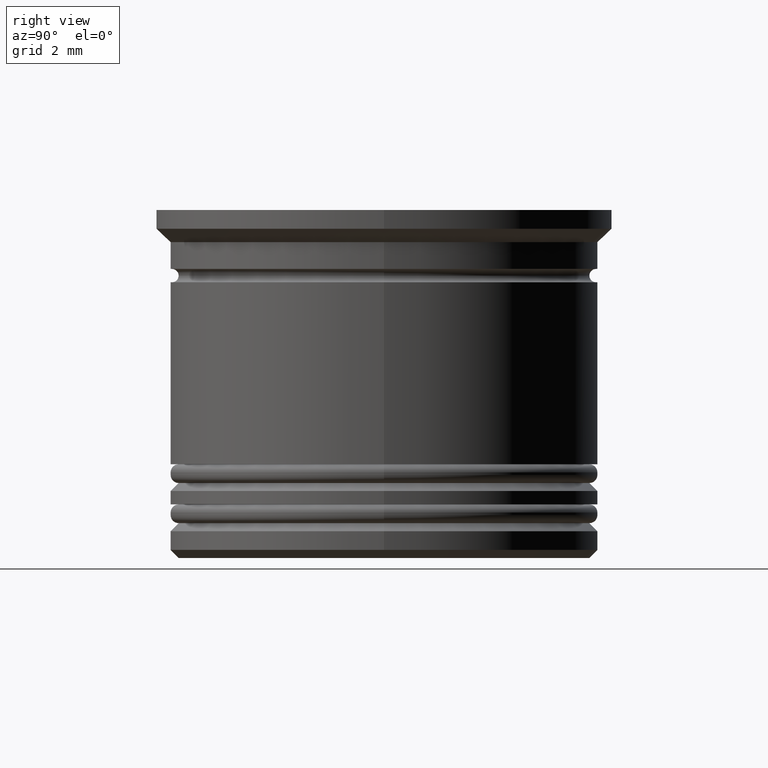
[diagram: clean part render]
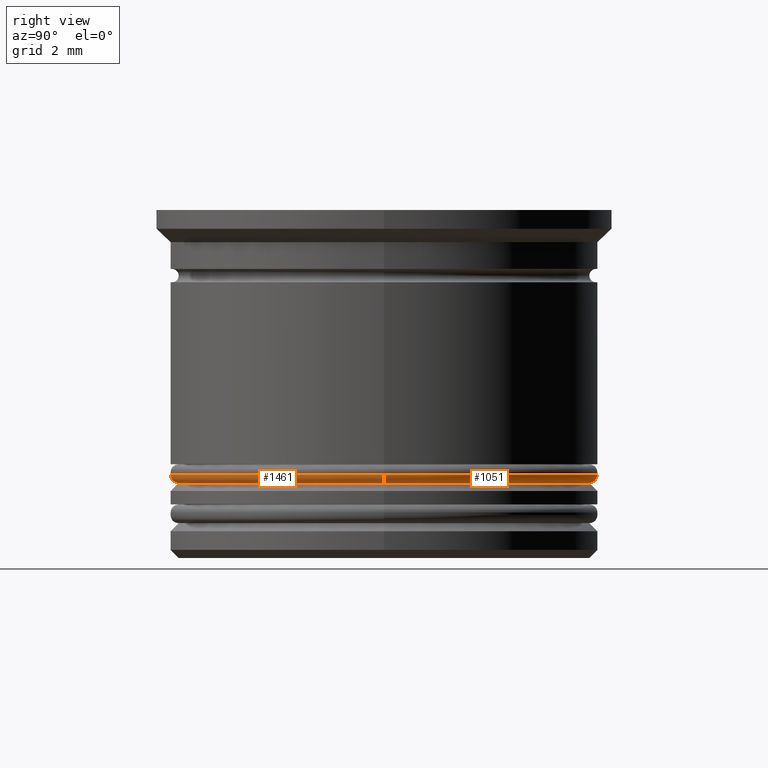
[diagram: same view with one multi-face feature highlighted, each face labeled with its STEP entity id]
A machine part, right view. The highlighted faces form ONE feature: a constant-radius fillet chain: 2 tangent blend faces with common blend radius 0.3 mm. The faces share edges in the B-rep.
Their STEP definitions:
[1] entity #1461 (Torus):
#8 = DIRECTION ( 'NONE',  ( 0.000000000000000000, 0.000000000000000000, 1.000000000000000000 ) ) ;
#33 = DIRECTION ( 'NONE',  ( 1.000000000000000000, 0.000000000000000000, 0.000000000000000000 ) ) ;
#110 = CARTESIAN_POINT ( 'NONE',  ( -8.000000000000001776, 9.797174393178827630E-16, -9.900000000000005684 ) ) ;
#116 = CIRCLE ( 'NONE', #1229, 7.700000000000001954 ) ;
#122 = CIRCLE ( 'NONE', #1019, 0.2999999999999999334 ) ;
#139 = CARTESIAN_POINT ( 'NONE',  ( 0.000000000000000000, 0.000000000000000000, -9.900000000000005684 ) ) ;
#210 = VERTEX_POINT ( 'NONE', #1585 ) ;
#278 = AXIS2_PLACEMENT_3D ( 'NONE', #518, #364, #1315 ) ;
#294 = DIRECTION ( 'NONE',  ( 0.000000000000000000, -1.000000000000000000, 0.000000000000000000 ) ) ;
#364 = DIRECTION ( 'NONE',  ( 1.224646799147353207E-16, 1.000000000000000000, -0.000000000000000000 ) ) ;
#429 = EDGE_CURVE ( 'NONE', #810, #1310, #1296, .T. ) ;
#518 = CARTESIAN_POINT ( 'NONE',  ( -7.700000000000001954, 9.429780353434622974E-16, -9.900000000000005684 ) ) ;
#534 = DIRECTION ( 'NONE',  ( 0.000000000000000000, 0.000000000000000000, 1.000000000000000000 ) ) ;
#633 = FACE_OUTER_BOUND ( 'NONE', #1155, .T. ) ;
#810 = VERTEX_POINT ( 'NONE', #1268 ) ;
#840 = ORIENTED_EDGE ( 'NONE', *, *, #1958, .T. ) ;
#925 = DIRECTION ( 'NONE',  ( 0.000000000000000000, 0.000000000000000000, -1.000000000000000000 ) ) ;
#1019 = AXIS2_PLACEMENT_3D ( 'NONE', #1670, #294, #925 ) ;
#1115 = EDGE_CURVE ( 'NONE', #1619, #810, #116, .T. ) ;
#1116 = DIRECTION ( 'NONE',  ( 1.000000000000000000, 0.000000000000000000, 0.000000000000000000 ) ) ;
#1155 = EDGE_LOOP ( 'NONE', ( #1594, #1762, #840, #1835 ) ) ;
#1187 = EDGE_CURVE ( 'NONE', #1310, #210, #1514, .T. ) ;
#1229 = AXIS2_PLACEMENT_3D ( 'NONE', #1987, #1252, #1116 ) ;
#1252 = DIRECTION ( 'NONE',  ( -0.000000000000000000, -0.000000000000000000, -1.000000000000000000 ) ) ;
#1266 = TOROIDAL_SURFACE ( 'NONE', #1729, 7.700000000000001954, 0.2999999999999999889 ) ;
#1268 = CARTESIAN_POINT ( 'NONE',  ( -7.700000000000001954, 9.613477373306725302E-16, -10.20000000000000817 ) ) ;
#1296 = CIRCLE ( 'NONE', #278, 0.2999999999999999334 ) ;
#1310 = VERTEX_POINT ( 'NONE', #110 ) ;
#1315 = DIRECTION ( 'NONE',  ( -1.000000000000000000, 1.224646799147353207E-16, 0.000000000000000000 ) ) ;
#1461 = ADVANCED_FACE ( 'NONE', ( #633 ), #1266, .T. ) ;
#1481 = AXIS2_PLACEMENT_3D ( 'NONE', #1600, #534, #33 ) ;
#1514 = CIRCLE ( 'NONE', #1481, 8.000000000000001776 ) ;
#1552 = DIRECTION ( 'NONE',  ( 1.000000000000000000, 0.000000000000000000, 0.000000000000000000 ) ) ;
#1585 = CARTESIAN_POINT ( 'NONE',  ( 8.000000000000001776, 0.000000000000000000, -9.900000000000005684 ) ) ;
#1594 = ORIENTED_EDGE ( 'NONE', *, *, #429, .F. ) ;
#1598 = CARTESIAN_POINT ( 'NONE',  ( 7.700000000000001954, 0.000000000000000000, -10.20000000000000817 ) ) ;
#1600 = CARTESIAN_POINT ( 'NONE',  ( 0.000000000000000000, 0.000000000000000000, -9.900000000000005684 ) ) ;
#1619 = VERTEX_POINT ( 'NONE', #1598 ) ;
#1670 = CARTESIAN_POINT ( 'NONE',  ( 7.700000000000001954, 0.000000000000000000, -9.900000000000005684 ) ) ;
#1729 = AXIS2_PLACEMENT_3D ( 'NONE', #139, #8, #1552 ) ;
#1762 = ORIENTED_EDGE ( 'NONE', *, *, #1115, .F. ) ;
#1835 = ORIENTED_EDGE ( 'NONE', *, *, #1187, .F. ) ;
#1958 = EDGE_CURVE ( 'NONE', #1619, #210, #122, .T. ) ;
#1987 = CARTESIAN_POINT ( 'NONE',  ( 0.000000000000000000, 0.000000000000000000, -10.20000000000000817 ) ) ;
[2] entity #1051 (Torus):
#110 = CARTESIAN_POINT ( 'NONE',  ( -8.000000000000001776, 9.797174393178827630E-16, -9.900000000000005684 ) ) ;
#122 = CIRCLE ( 'NONE', #1019, 0.2999999999999999334 ) ;
#125 = CARTESIAN_POINT ( 'NONE',  ( 0.000000000000000000, 0.000000000000000000, -10.20000000000000817 ) ) ;
#149 = AXIS2_PLACEMENT_3D ( 'NONE', #125, #942, #1666 ) ;
#175 = ORIENTED_EDGE ( 'NONE', *, *, #1030, .F. ) ;
#210 = VERTEX_POINT ( 'NONE', #1585 ) ;
#278 = AXIS2_PLACEMENT_3D ( 'NONE', #518, #364, #1315 ) ;
#294 = DIRECTION ( 'NONE',  ( 0.000000000000000000, -1.000000000000000000, 0.000000000000000000 ) ) ;
#311 = DIRECTION ( 'NONE',  ( 1.000000000000000000, 0.000000000000000000, 0.000000000000000000 ) ) ;
#324 = DIRECTION ( 'NONE',  ( 0.000000000000000000, 0.000000000000000000, 1.000000000000000000 ) ) ;
#331 = ORIENTED_EDGE ( 'NONE', *, *, #429, .T. ) ;
#364 = DIRECTION ( 'NONE',  ( 1.224646799147353207E-16, 1.000000000000000000, -0.000000000000000000 ) ) ;
#429 = EDGE_CURVE ( 'NONE', #810, #1310, #1296, .T. ) ;
#448 = DIRECTION ( 'NONE',  ( 0.000000000000000000, 0.000000000000000000, 1.000000000000000000 ) ) ;
#452 = CIRCLE ( 'NONE', #1786, 8.000000000000001776 ) ;
#491 = FACE_OUTER_BOUND ( 'NONE', #1894, .T. ) ;
#518 = CARTESIAN_POINT ( 'NONE',  ( -7.700000000000001954, 9.429780353434622974E-16, -9.900000000000005684 ) ) ;
#519 = CIRCLE ( 'NONE', #149, 7.700000000000001954 ) ;
#685 = AXIS2_PLACEMENT_3D ( 'NONE', #1096, #324, #311 ) ;
#810 = VERTEX_POINT ( 'NONE', #1268 ) ;
#925 = DIRECTION ( 'NONE',  ( 0.000000000000000000, 0.000000000000000000, -1.000000000000000000 ) ) ;
#942 = DIRECTION ( 'NONE',  ( -0.000000000000000000, -0.000000000000000000, -1.000000000000000000 ) ) ;
#1019 = AXIS2_PLACEMENT_3D ( 'NONE', #1670, #294, #925 ) ;
#1030 = EDGE_CURVE ( 'NONE', #810, #1619, #519, .T. ) ;
#1051 = ADVANCED_FACE ( 'NONE', ( #491 ), #1140, .T. ) ;
#1066 = EDGE_CURVE ( 'NONE', #210, #1310, #452, .T. ) ;
#1096 = CARTESIAN_POINT ( 'NONE',  ( 0.000000000000000000, 0.000000000000000000, -9.900000000000005684 ) ) ;
#1140 = TOROIDAL_SURFACE ( 'NONE', #685, 7.700000000000001954, 0.2999999999999999889 ) ;
#1242 = DIRECTION ( 'NONE',  ( 1.000000000000000000, 0.000000000000000000, 0.000000000000000000 ) ) ;
#1268 = CARTESIAN_POINT ( 'NONE',  ( -7.700000000000001954, 9.613477373306725302E-16, -10.20000000000000817 ) ) ;
#1296 = CIRCLE ( 'NONE', #278, 0.2999999999999999334 ) ;
#1310 = VERTEX_POINT ( 'NONE', #110 ) ;
#1315 = DIRECTION ( 'NONE',  ( -1.000000000000000000, 1.224646799147353207E-16, 0.000000000000000000 ) ) ;
#1403 = CARTESIAN_POINT ( 'NONE',  ( 0.000000000000000000, 0.000000000000000000, -9.900000000000005684 ) ) ;
#1585 = CARTESIAN_POINT ( 'NONE',  ( 8.000000000000001776, 0.000000000000000000, -9.900000000000005684 ) ) ;
#1598 = CARTESIAN_POINT ( 'NONE',  ( 7.700000000000001954, 0.000000000000000000, -10.20000000000000817 ) ) ;
#1619 = VERTEX_POINT ( 'NONE', #1598 ) ;
#1666 = DIRECTION ( 'NONE',  ( 1.000000000000000000, 0.000000000000000000, 0.000000000000000000 ) ) ;
#1670 = CARTESIAN_POINT ( 'NONE',  ( 7.700000000000001954, 0.000000000000000000, -9.900000000000005684 ) ) ;
#1786 = AXIS2_PLACEMENT_3D ( 'NONE', #1403, #448, #1242 ) ;
#1794 = ORIENTED_EDGE ( 'NONE', *, *, #1958, .F. ) ;
#1894 = EDGE_LOOP ( 'NONE', ( #175, #331, #1943, #1794 ) ) ;
#1943 = ORIENTED_EDGE ( 'NONE', *, *, #1066, .F. ) ;
#1958 = EDGE_CURVE ( 'NONE', #1619, #210, #122, .T. ) ;